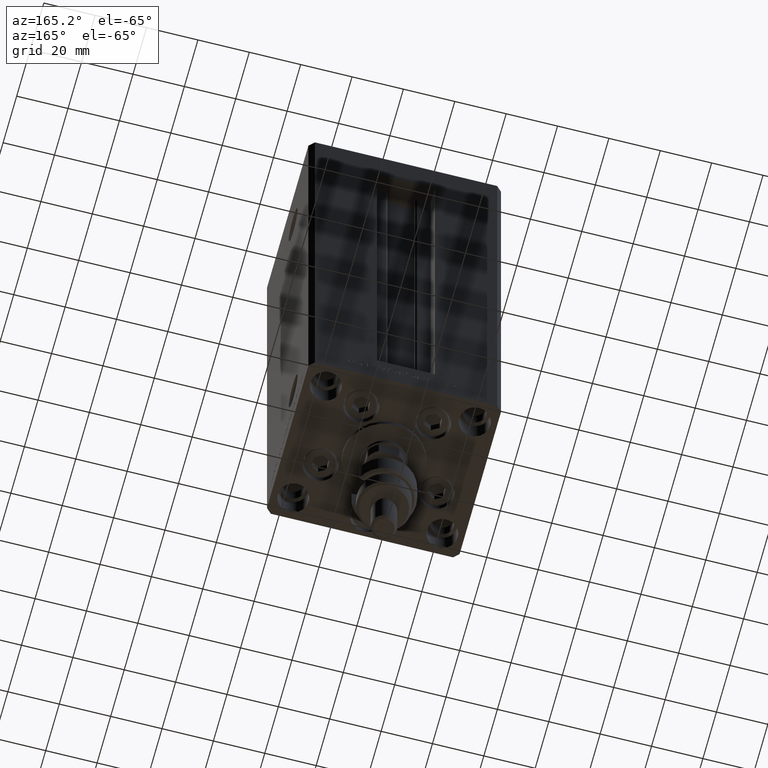
[diagram: clean part render]
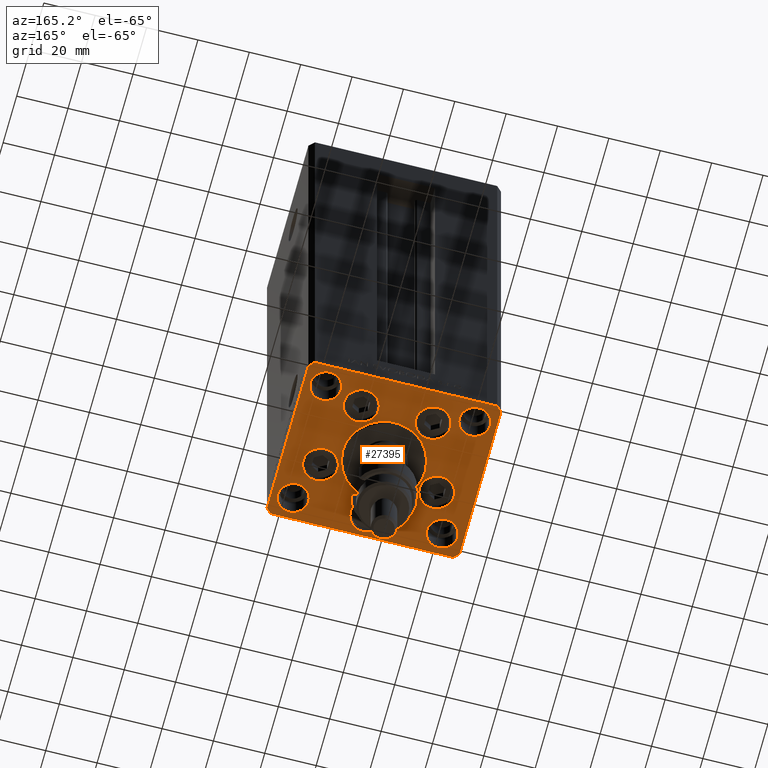
[diagram: same view with one face highlighted and labeled with its STEP entity id]
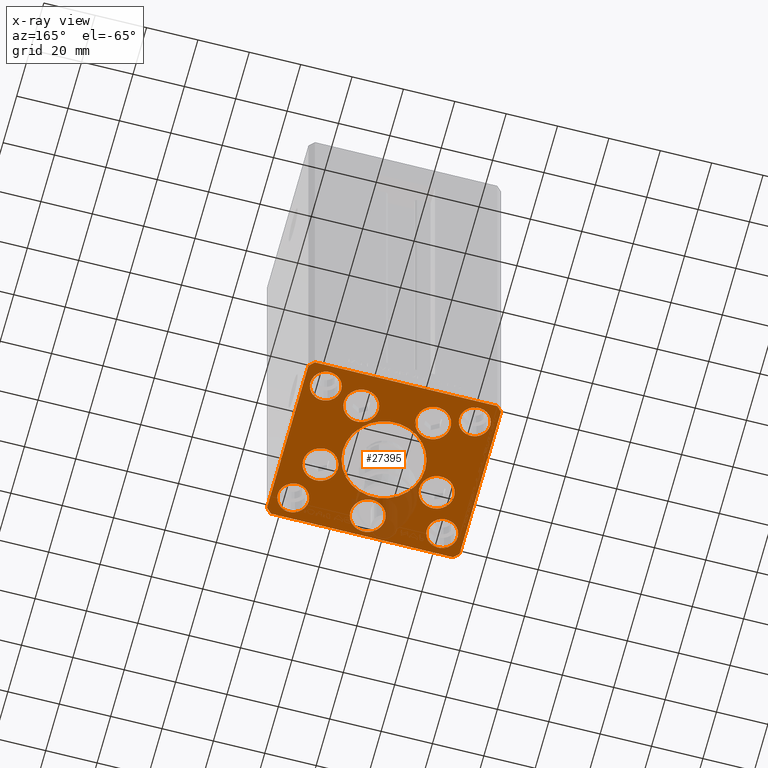
[diagram: x-ray of the same camera — body ghosted, the highlighted face saturated]
A machine part, auxiliary view. The second image highlights one B-rep face of the part: STEP entity #27395.
The next image is the same camera in x-ray: the body ghosted, the highlighted face saturated — about 7% of this face is hidden behind the body in this view.
In plain terms, the highlighted planar face has unit normal (0, 0, -1).
Its self-contained STEP definition (entity closure, byte-faithful):
#319 = FACE_BOUND ( 'NONE', #27380, .T. ) ;
#322 = DIRECTION ( 'NONE',  ( 0.000000000000000000, 1.000000000000000000, 0.000000000000000000 ) ) ;
#432 = AXIS2_PLACEMENT_3D ( 'NONE', #17526, #21367, #40750 ) ;
#747 = CARTESIAN_POINT ( 'NONE',  ( 13.99106857963324124, 19.50000000000000000, 0.000000000000000000 ) ) ;
#840 = CARTESIAN_POINT ( 'NONE',  ( -20.74106857963324302, 19.50000000000000000, 0.000000000000000000 ) ) ;
#1094 = DIRECTION ( 'NONE',  ( 0.000000000000000000, 0.000000000000000000, 1.000000000000000000 ) ) ;
#1634 = VERTEX_POINT ( 'NONE', #45539 ) ;
#2009 = DIRECTION ( 'NONE',  ( 0.000000000000000000, 0.000000000000000000, 1.000000000000000000 ) ) ;
#2075 = VERTEX_POINT ( 'NONE', #42653 ) ;
#2346 = ORIENTED_EDGE ( 'NONE', *, *, #33706, .T. ) ;
#2354 = DIRECTION ( 'NONE',  ( 1.000000000000000000, 0.000000000000000000, 0.000000000000000000 ) ) ;
#2499 = CIRCLE ( 'NONE', #30240, 6.000000000000001776 ) ;
#2607 = DIRECTION ( 'NONE',  ( 2.275047181608926165E-16, -1.000000000000000000, 0.000000000000000000 ) ) ;
#2815 = DIRECTION ( 'NONE',  ( -0.7071067811865524577, -0.7071067811865426878, 0.000000000000000000 ) ) ;
#3482 = CARTESIAN_POINT ( 'NONE',  ( -29.37741699796953654, -8.000000000000000000, 0.000000000000000000 ) ) ;
#4156 = LINE ( 'NONE', #35289, #38478 ) ;
#4389 = EDGE_CURVE ( 'NONE', #29382, #18525, #40756, .T. ) ;
#4407 = FACE_BOUND ( 'NONE', #25625, .T. ) ;
#5706 = DIRECTION ( 'NONE',  ( 0.000000000000000000, 0.000000000000000000, 1.000000000000000000 ) ) ;
#6003 = AXIS2_PLACEMENT_3D ( 'NONE', #7097, #38248, #48723 ) ;
#6051 = AXIS2_PLACEMENT_3D ( 'NONE', #31749, #42718, #20260 ) ;
#6179 = CARTESIAN_POINT ( 'NONE',  ( -13.99106857963324124, 19.50000000000000000, 0.000000000000000000 ) ) ;
#6196 = LINE ( 'NONE', #21772, #34078 ) ;
#6325 = EDGE_CURVE ( 'NONE', #23954, #28646, #2499, .T. ) ;
#6653 = AXIS2_PLACEMENT_3D ( 'NONE', #9346, #14883, #18452 ) ;
#7024 = CARTESIAN_POINT ( 'NONE',  ( 0.000000000000000000, 0.000000000000000000, 0.000000000000000000 ) ) ;
#7030 = VECTOR ( 'NONE', #12043, 1000.000000000000000 ) ;
#7097 = CARTESIAN_POINT ( 'NONE',  ( 29.00000000000000355, -23.99999999999999645, 0.000000000000000000 ) ) ;
#7099 = CARTESIAN_POINT ( 'NONE',  ( 7.241068579633242130, 19.50000000000000000, 0.000000000000000000 ) ) ;
#7168 = VERTEX_POINT ( 'NONE', #7099 ) ;
#7319 = DIRECTION ( 'NONE',  ( 0.000000000000000000, 0.000000000000000000, 1.000000000000000000 ) ) ;
#7394 = ORIENTED_EDGE ( 'NONE', *, *, #32963, .F. ) ;
#7513 = DIRECTION ( 'NONE',  ( 0.000000000000000000, 0.000000000000000000, 1.000000000000000000 ) ) ;
#7701 = AXIS2_PLACEMENT_3D ( 'NONE', #13506, #2009, #45127 ) ;
#7783 = CARTESIAN_POINT ( 'NONE',  ( -35.50000000000000711, 32.49999999999997868, 0.000000000000000000 ) ) ;
#7959 = ORIENTED_EDGE ( 'NONE', *, *, #45620, .F. ) ;
#8325 = VECTOR ( 'NONE', #31111, 1000.000000000000000 ) ;
#8426 = VERTEX_POINT ( 'NONE', #7783 ) ;
#8469 = DIRECTION ( 'NONE',  ( -0.000000000000000000, 0.000000000000000000, 1.000000000000000000 ) ) ;
#8533 = ORIENTED_EDGE ( 'NONE', *, *, #20766, .F. ) ;
#8701 = DIRECTION ( 'NONE',  ( 0.000000000000000000, 0.000000000000000000, 1.000000000000000000 ) ) ;
#8733 = ORIENTED_EDGE ( 'NONE', *, *, #20918, .T. ) ;
#8927 = ORIENTED_EDGE ( 'NONE', *, *, #18617, .F. ) ;
#9290 = CIRCLE ( 'NONE', #6051, 6.000000000000001776 ) ;
#9346 = CARTESIAN_POINT ( 'NONE',  ( 13.99106857963324124, 19.50000000000000000, 0.000000000000000000 ) ) ;
#9428 = CIRCLE ( 'NONE', #19209, 6.750000000000009770 ) ;
#9737 = ORIENTED_EDGE ( 'NONE', *, *, #48559, .F. ) ;
#9741 = EDGE_CURVE ( 'NONE', #2075, #37501, #26149, .T. ) ;
#9926 = EDGE_LOOP ( 'NONE', ( #7959, #8533 ) ) ;
#10194 = ORIENTED_EDGE ( 'NONE', *, *, #18890, .F. ) ;
#10372 = VERTEX_POINT ( 'NONE', #11335 ) ;
#10645 = CARTESIAN_POINT ( 'NONE',  ( -22.62741699796953299, -8.000000000000000000, 0.000000000000000000 ) ) ;
#10714 = CARTESIAN_POINT ( 'NONE',  ( -6.750000000001552536, -24.00000000000001066, 0.000000000000000000 ) ) ;
#10872 = VERTEX_POINT ( 'NONE', #43595 ) ;
#11017 = CARTESIAN_POINT ( 'NONE',  ( -37.50000000000001421, 30.50000000000000000, 0.000000000000000000 ) ) ;
#11073 = EDGE_CURVE ( 'NONE', #22239, #16696, #36788, .T. ) ;
#11115 = CIRCLE ( 'NONE', #33123, 16.00000000000000355 ) ;
#11335 = CARTESIAN_POINT ( 'NONE',  ( -15.87741699796953476, -8.000000000000000000, 0.000000000000000000 ) ) ;
#11448 = DIRECTION ( 'NONE',  ( -0.7071067811865524577, 0.7071067811865426878, 0.000000000000000000 ) ) ;
#11917 = AXIS2_PLACEMENT_3D ( 'NONE', #44739, #5706, #28697 ) ;
#12043 = DIRECTION ( 'NONE',  ( 1.000000000000000000, 1.172770800660376149E-15, 0.000000000000000000 ) ) ;
#12087 = ORIENTED_EDGE ( 'NONE', *, *, #9741, .F. ) ;
#12309 = FACE_OUTER_BOUND ( 'NONE', #24247, .T. ) ;
#12482 = CARTESIAN_POINT ( 'NONE',  ( 29.00000000000000000, 24.00000000000000355, 0.000000000000000000 ) ) ;
#12649 = CARTESIAN_POINT ( 'NONE',  ( 6.750000000001552536, -24.00000000000001066, 0.000000000000000000 ) ) ;
#12866 = EDGE_CURVE ( 'NONE', #13572, #8426, #27283, .T. ) ;
#13194 = ORIENTED_EDGE ( 'NONE', *, *, #48880, .F. ) ;
#13206 = EDGE_LOOP ( 'NONE', ( #10194, #22222 ) ) ;
#13506 = CARTESIAN_POINT ( 'NONE',  ( -13.99106857963324124, 19.50000000000000000, 0.000000000000000000 ) ) ;
#13572 = VERTEX_POINT ( 'NONE', #29367 ) ;
#13804 = CARTESIAN_POINT ( 'NONE',  ( -29.00000000000000000, 24.00000000000000711, 0.000000000000000000 ) ) ;
#14061 = ORIENTED_EDGE ( 'NONE', *, *, #48281, .T. ) ;
#14280 = ORIENTED_EDGE ( 'NONE', *, *, #29124, .F. ) ;
#14435 = ORIENTED_EDGE ( 'NONE', *, *, #26167, .T. ) ;
#14702 = DIRECTION ( 'NONE',  ( 1.000000000000000000, 0.000000000000000000, 0.000000000000000000 ) ) ;
#14849 = LINE ( 'NONE', #11017, #18164 ) ;
#14883 = DIRECTION ( 'NONE',  ( 0.000000000000000000, 0.000000000000000000, 1.000000000000000000 ) ) ;
#14965 = CIRCLE ( 'NONE', #6003, 5.999999999999998224 ) ;
#15167 = CIRCLE ( 'NONE', #43685, 16.00000000000000355 ) ;
#15390 = CIRCLE ( 'NONE', #22756, 6.750000000001552536 ) ;
#15820 = CARTESIAN_POINT ( 'NONE',  ( 20.74106857963323947, 19.50000000000000000, 0.000000000000000000 ) ) ;
#15879 = FACE_BOUND ( 'NONE', #9926, .T. ) ;
#16003 = CIRCLE ( 'NONE', #11917, 6.749999999999999112 ) ;
#16139 = FACE_BOUND ( 'NONE', #13206, .T. ) ;
#16154 = CARTESIAN_POINT ( 'NONE',  ( -23.00000000000000000, 24.00000000000000711, 0.000000000000000000 ) ) ;
#16273 = EDGE_LOOP ( 'NONE', ( #24121, #48031 ) ) ;
#16322 = VERTEX_POINT ( 'NONE', #24980 ) ;
#16456 = EDGE_LOOP ( 'NONE', ( #14280, #36367 ) ) ;
#16696 = VERTEX_POINT ( 'NONE', #19611 ) ;
#17526 = CARTESIAN_POINT ( 'NONE',  ( 29.00000000000000000, 24.00000000000000355, 0.000000000000000000 ) ) ;
#17543 = CIRCLE ( 'NONE', #432, 6.000000000000001776 ) ;
#17652 = VERTEX_POINT ( 'NONE', #23261 ) ;
#17779 = CARTESIAN_POINT ( 'NONE',  ( -37.50000000000001421, 30.50000000000000000, 0.000000000000000000 ) ) ;
#17818 = DIRECTION ( 'NONE',  ( 1.000000000000000000, 0.000000000000000000, 0.000000000000000000 ) ) ;
#17885 = CARTESIAN_POINT ( 'NONE',  ( -35.50000000000000711, 32.49999999999997868, 0.000000000000000000 ) ) ;
#18125 = DIRECTION ( 'NONE',  ( 0.000000000000000000, 0.000000000000000000, 1.000000000000000000 ) ) ;
#18164 = VECTOR ( 'NONE', #2607, 1000.000000000000000 ) ;
#18168 = DIRECTION ( 'NONE',  ( 0.7071067811865463515, 0.7071067811865487940, 0.000000000000000000 ) ) ;
#18452 = DIRECTION ( 'NONE',  ( 1.000000000000000000, 0.000000000000000000, 0.000000000000000000 ) ) ;
#18514 = FACE_BOUND ( 'NONE', #22981, .T. ) ;
#18525 = VERTEX_POINT ( 'NONE', #10714 ) ;
#18617 = EDGE_CURVE ( 'NONE', #16322, #10872, #18944, .T. ) ;
#18879 = DIRECTION ( 'NONE',  ( 1.000000000000000000, 0.000000000000000000, 0.000000000000000000 ) ) ;
#18890 = EDGE_CURVE ( 'NONE', #10372, #29210, #27927, .T. ) ;
#18944 = CIRCLE ( 'NONE', #20591, 6.750000000000009770 ) ;
#18977 = ORIENTED_EDGE ( 'NONE', *, *, #4389, .F. ) ;
#19209 = AXIS2_PLACEMENT_3D ( 'NONE', #27874, #8701, #48945 ) ;
#19314 = ORIENTED_EDGE ( 'NONE', *, *, #47482, .F. ) ;
#19458 = ORIENTED_EDGE ( 'NONE', *, *, #23281, .T. ) ;
#19611 = CARTESIAN_POINT ( 'NONE',  ( -23.00000000000000000, -23.99999999999999645, 0.000000000000000000 ) ) ;
#19614 = VERTEX_POINT ( 'NONE', #39176 ) ;
#20127 = CARTESIAN_POINT ( 'NONE',  ( 35.50000000000000000, 32.49999999999999289, 0.000000000000000000 ) ) ;
#20260 = DIRECTION ( 'NONE',  ( 1.000000000000000000, 0.000000000000000000, 0.000000000000000000 ) ) ;
#20395 = DIRECTION ( 'NONE',  ( 1.000000000000000000, 0.000000000000000000, 0.000000000000000000 ) ) ;
#20548 = ORIENTED_EDGE ( 'NONE', *, *, #31180, .T. ) ;
#20591 = AXIS2_PLACEMENT_3D ( 'NONE', #29872, #34197, #18879 ) ;
#20598 = CARTESIAN_POINT ( 'NONE',  ( -37.50000000000000000, -30.50000000000004263, 0.000000000000000000 ) ) ;
#20766 = EDGE_CURVE ( 'NONE', #7168, #34777, #22179, .T. ) ;
#20918 = EDGE_CURVE ( 'NONE', #25243, #39107, #4156, .T. ) ;
#21367 = DIRECTION ( 'NONE',  ( 0.000000000000000000, 0.000000000000000000, 1.000000000000000000 ) ) ;
#21439 = ORIENTED_EDGE ( 'NONE', *, *, #12866, .T. ) ;
#21538 = CARTESIAN_POINT ( 'NONE',  ( -29.00000000000000000, 24.00000000000000711, 0.000000000000000000 ) ) ;
#21772 = CARTESIAN_POINT ( 'NONE',  ( -37.50000000000000000, -30.50000000000004263, 0.000000000000000000 ) ) ;
#22049 = VERTEX_POINT ( 'NONE', #17779 ) ;
#22139 = CARTESIAN_POINT ( 'NONE',  ( -35.00000000000000000, 24.00000000000000711, 0.000000000000000000 ) ) ;
#22179 = CIRCLE ( 'NONE', #6653, 6.749999999999997335 ) ;
#22222 = ORIENTED_EDGE ( 'NONE', *, *, #48112, .F. ) ;
#22239 = VERTEX_POINT ( 'NONE', #25635 ) ;
#22456 = CARTESIAN_POINT ( 'NONE',  ( 35.00000000000000000, -23.99999999999999645, 0.000000000000000000 ) ) ;
#22582 = CIRCLE ( 'NONE', #40496, 6.000000000000001776 ) ;
#22756 = AXIS2_PLACEMENT_3D ( 'NONE', #27548, #23716, #39286 ) ;
#22981 = EDGE_LOOP ( 'NONE', ( #32457, #42889 ) ) ;
#23033 = AXIS2_PLACEMENT_3D ( 'NONE', #10645, #7319, #26223 ) ;
#23261 = CARTESIAN_POINT ( 'NONE',  ( 16.00000000000000355, -4.979459025271462852E-15, 0.000000000000000000 ) ) ;
#23281 = EDGE_CURVE ( 'NONE', #22049, #34230, #14849, .T. ) ;
#23441 = CARTESIAN_POINT ( 'NONE',  ( 37.50000000000000711, 30.50000000000001421, 0.000000000000000000 ) ) ;
#23716 = DIRECTION ( 'NONE',  ( 0.000000000000000000, 0.000000000000000000, 1.000000000000000000 ) ) ;
#23954 = VERTEX_POINT ( 'NONE', #22139 ) ;
#24052 = DIRECTION ( 'NONE',  ( 1.000000000000000000, 0.000000000000000000, 0.000000000000000000 ) ) ;
#24121 = ORIENTED_EDGE ( 'NONE', *, *, #27852, .F. ) ;
#24247 = EDGE_LOOP ( 'NONE', ( #44997, #14061, #20548, #8733, #14435, #21439, #2346, #19458 ) ) ;
#24980 = CARTESIAN_POINT ( 'NONE',  ( 15.87741699796952410, -8.000000000000000000, 0.000000000000000000 ) ) ;
#25243 = VERTEX_POINT ( 'NONE', #49732 ) ;
#25263 = EDGE_CURVE ( 'NONE', #37501, #2075, #14965, .T. ) ;
#25625 = EDGE_LOOP ( 'NONE', ( #19314, #8927 ) ) ;
#25635 = CARTESIAN_POINT ( 'NONE',  ( -35.00000000000000000, -23.99999999999999645, 0.000000000000000000 ) ) ;
#25791 = DIRECTION ( 'NONE',  ( 0.000000000000000000, 0.000000000000000000, 1.000000000000000000 ) ) ;
#26149 = CIRCLE ( 'NONE', #44863, 5.999999999999998224 ) ;
#26167 = EDGE_CURVE ( 'NONE', #39107, #13572, #38757, .T. ) ;
#26223 = DIRECTION ( 'NONE',  ( 1.000000000000000000, 0.000000000000000000, 0.000000000000000000 ) ) ;
#27245 = VECTOR ( 'NONE', #11448, 1000.000000000000000 ) ;
#27283 = LINE ( 'NONE', #20127, #8325 ) ;
#27380 = EDGE_LOOP ( 'NONE', ( #9737, #13194 ) ) ;
#27395 = ADVANCED_FACE ( 'NONE', ( #319, #41740, #15879, #4407, #35536, #16139, #31715, #47268, #18514, #41988, #12309 ), #43438, .T. ) ;
#27548 = CARTESIAN_POINT ( 'NONE',  ( 0.000000000000000000, -24.00000000000001066, 0.000000000000000000 ) ) ;
#27852 = EDGE_CURVE ( 'NONE', #33516, #28584, #32162, .T. ) ;
#27874 = CARTESIAN_POINT ( 'NONE',  ( 22.62741699796953299, -8.000000000000000000, 0.000000000000000000 ) ) ;
#27927 = CIRCLE ( 'NONE', #23033, 6.749999999999999112 ) ;
#28584 = VERTEX_POINT ( 'NONE', #840 ) ;
#28646 = VERTEX_POINT ( 'NONE', #16154 ) ;
#28697 = DIRECTION ( 'NONE',  ( 1.000000000000000000, 0.000000000000000000, 0.000000000000000000 ) ) ;
#29124 = EDGE_CURVE ( 'NONE', #29534, #40567, #17543, .T. ) ;
#29146 = ORIENTED_EDGE ( 'NONE', *, *, #6325, .F. ) ;
#29210 = VERTEX_POINT ( 'NONE', #3482 ) ;
#29367 = CARTESIAN_POINT ( 'NONE',  ( 35.50000000000000000, 32.49999999999999289, 0.000000000000000000 ) ) ;
#29382 = VERTEX_POINT ( 'NONE', #12649 ) ;
#29534 = VERTEX_POINT ( 'NONE', #46532 ) ;
#29628 = CARTESIAN_POINT ( 'NONE',  ( 0.000000000000000000, -6.938893903907228378E-15, 0.000000000000000000 ) ) ;
#29666 = LINE ( 'NONE', #41640, #49391 ) ;
#29872 = CARTESIAN_POINT ( 'NONE',  ( 22.62741699796953299, -8.000000000000000000, 0.000000000000000000 ) ) ;
#29881 = DIRECTION ( 'NONE',  ( 1.000000000000000000, 0.000000000000000000, 0.000000000000000000 ) ) ;
#29884 = LINE ( 'NONE', #17885, #29905 ) ;
#29905 = VECTOR ( 'NONE', #2815, 1000.000000000000000 ) ;
#30240 = AXIS2_PLACEMENT_3D ( 'NONE', #21538, #48096, #44755 ) ;
#30753 = CARTESIAN_POINT ( 'NONE',  ( 0.000000000000000000, -24.00000000000001066, 0.000000000000000000 ) ) ;
#31020 = ORIENTED_EDGE ( 'NONE', *, *, #25263, .F. ) ;
#31111 = DIRECTION ( 'NONE',  ( -1.000000000000000000, -1.954618001100627573E-16, 0.000000000000000000 ) ) ;
#31125 = EDGE_CURVE ( 'NONE', #28584, #33516, #33891, .T. ) ;
#31180 = EDGE_CURVE ( 'NONE', #38940, #25243, #29666, .T. ) ;
#31416 = AXIS2_PLACEMENT_3D ( 'NONE', #747, #32132, #20395 ) ;
#31715 = FACE_BOUND ( 'NONE', #16456, .T. ) ;
#31749 = CARTESIAN_POINT ( 'NONE',  ( -29.00000000000000000, -23.99999999999999645, 0.000000000000000000 ) ) ;
#32132 = DIRECTION ( 'NONE',  ( 0.000000000000000000, 0.000000000000000000, 1.000000000000000000 ) ) ;
#32162 = CIRCLE ( 'NONE', #7701, 6.750000000000000000 ) ;
#32457 = ORIENTED_EDGE ( 'NONE', *, *, #43948, .F. ) ;
#32963 = EDGE_CURVE ( 'NONE', #28646, #23954, #22582, .T. ) ;
#33123 = AXIS2_PLACEMENT_3D ( 'NONE', #45364, #44868, #17818 ) ;
#33201 = AXIS2_PLACEMENT_3D ( 'NONE', #12482, #36703, #47439 ) ;
#33516 = VERTEX_POINT ( 'NONE', #41416 ) ;
#33706 = EDGE_CURVE ( 'NONE', #8426, #22049, #29884, .T. ) ;
#33891 = CIRCLE ( 'NONE', #45299, 6.750000000000000000 ) ;
#34078 = VECTOR ( 'NONE', #37341, 1000.000000000000000 ) ;
#34197 = DIRECTION ( 'NONE',  ( 0.000000000000000000, 0.000000000000000000, 1.000000000000000000 ) ) ;
#34230 = VERTEX_POINT ( 'NONE', #20598 ) ;
#34777 = VERTEX_POINT ( 'NONE', #15820 ) ;
#35289 = CARTESIAN_POINT ( 'NONE',  ( 37.50000000000000711, -30.49999999999992895, 0.000000000000000000 ) ) ;
#35536 = FACE_BOUND ( 'NONE', #48460, .T. ) ;
#36289 = ORIENTED_EDGE ( 'NONE', *, *, #42069, .F. ) ;
#36336 = CARTESIAN_POINT ( 'NONE',  ( 35.50000000000001421, -32.49999999999992184, 0.000000000000000000 ) ) ;
#36367 = ORIENTED_EDGE ( 'NONE', *, *, #38386, .F. ) ;
#36703 = DIRECTION ( 'NONE',  ( 0.000000000000000000, 0.000000000000000000, 1.000000000000000000 ) ) ;
#36788 = CIRCLE ( 'NONE', #43304, 6.000000000000001776 ) ;
#37322 = DIRECTION ( 'NONE',  ( 0.000000000000000000, 0.000000000000000000, 1.000000000000000000 ) ) ;
#37341 = DIRECTION ( 'NONE',  ( 0.7071067811865512365, -0.7071067811865439090, 0.000000000000000000 ) ) ;
#37501 = VERTEX_POINT ( 'NONE', #22456 ) ;
#37718 = EDGE_LOOP ( 'NONE', ( #7394, #29146 ) ) ;
#38248 = DIRECTION ( 'NONE',  ( 0.000000000000000000, 0.000000000000000000, 1.000000000000000000 ) ) ;
#38356 = LINE ( 'NONE', #45997, #7030 ) ;
#38386 = EDGE_CURVE ( 'NONE', #40567, #29534, #42160, .T. ) ;
#38478 = VECTOR ( 'NONE', #322, 1000.000000000000000 ) ;
#38757 = LINE ( 'NONE', #23441, #27245 ) ;
#38940 = VERTEX_POINT ( 'NONE', #36336 ) ;
#39107 = VERTEX_POINT ( 'NONE', #46488 ) ;
#39167 = DIRECTION ( 'NONE',  ( 1.000000000000000000, 0.000000000000000000, 0.000000000000000000 ) ) ;
#39176 = CARTESIAN_POINT ( 'NONE',  ( -35.50000000000001421, -32.50000000000000711, 0.000000000000000000 ) ) ;
#39286 = DIRECTION ( 'NONE',  ( 1.000000000000000000, 0.000000000000000000, 0.000000000000000000 ) ) ;
#39647 = DIRECTION ( 'NONE',  ( 1.000000000000000000, 0.000000000000000000, 0.000000000000000000 ) ) ;
#39803 = EDGE_CURVE ( 'NONE', #34230, #19614, #6196, .T. ) ;
#39935 = AXIS2_PLACEMENT_3D ( 'NONE', #30753, #7513, #39167 ) ;
#40294 = EDGE_LOOP ( 'NONE', ( #31020, #12087 ) ) ;
#40496 = AXIS2_PLACEMENT_3D ( 'NONE', #13804, #25791, #41348 ) ;
#40567 = VERTEX_POINT ( 'NONE', #44966 ) ;
#40750 = DIRECTION ( 'NONE',  ( 1.000000000000000000, 0.000000000000000000, 0.000000000000000000 ) ) ;
#40756 = CIRCLE ( 'NONE', #39935, 6.750000000001552536 ) ;
#41348 = DIRECTION ( 'NONE',  ( 1.000000000000000000, 0.000000000000000000, 0.000000000000000000 ) ) ;
#41416 = CARTESIAN_POINT ( 'NONE',  ( -7.241068579633241242, 19.50000000000000000, 0.000000000000000000 ) ) ;
#41496 = DIRECTION ( 'NONE',  ( 0.000000000000000000, 0.000000000000000000, 1.000000000000000000 ) ) ;
#41640 = CARTESIAN_POINT ( 'NONE',  ( 35.50000000000001421, -32.49999999999992184, 0.000000000000000000 ) ) ;
#41740 = FACE_BOUND ( 'NONE', #16273, .T. ) ;
#41988 = FACE_BOUND ( 'NONE', #40294, .T. ) ;
#42069 = EDGE_CURVE ( 'NONE', #18525, #29382, #15390, .T. ) ;
#42160 = CIRCLE ( 'NONE', #33201, 6.000000000000001776 ) ;
#42653 = CARTESIAN_POINT ( 'NONE',  ( 23.00000000000000711, -23.99999999999999645, 0.000000000000000000 ) ) ;
#42718 = DIRECTION ( 'NONE',  ( 0.000000000000000000, 0.000000000000000000, 1.000000000000000000 ) ) ;
#42889 = ORIENTED_EDGE ( 'NONE', *, *, #11073, .F. ) ;
#43304 = AXIS2_PLACEMENT_3D ( 'NONE', #45578, #41496, #14702 ) ;
#43438 = PLANE ( 'NONE',  #46033 ) ;
#43595 = CARTESIAN_POINT ( 'NONE',  ( 29.37741699796954364, -8.000000000000000000, 0.000000000000000000 ) ) ;
#43685 = AXIS2_PLACEMENT_3D ( 'NONE', #29628, #18125, #29881 ) ;
#43948 = EDGE_CURVE ( 'NONE', #16696, #22239, #9290, .T. ) ;
#43959 = CARTESIAN_POINT ( 'NONE',  ( 29.00000000000000355, -23.99999999999999645, 0.000000000000000000 ) ) ;
#44739 = CARTESIAN_POINT ( 'NONE',  ( -22.62741699796953299, -8.000000000000000000, 0.000000000000000000 ) ) ;
#44755 = DIRECTION ( 'NONE',  ( 1.000000000000000000, 0.000000000000000000, 0.000000000000000000 ) ) ;
#44863 = AXIS2_PLACEMENT_3D ( 'NONE', #43959, #1094, #39647 ) ;
#44868 = DIRECTION ( 'NONE',  ( 0.000000000000000000, 0.000000000000000000, 1.000000000000000000 ) ) ;
#44966 = CARTESIAN_POINT ( 'NONE',  ( 23.00000000000000000, 24.00000000000000355, 0.000000000000000000 ) ) ;
#44997 = ORIENTED_EDGE ( 'NONE', *, *, #39803, .T. ) ;
#45127 = DIRECTION ( 'NONE',  ( 1.000000000000000000, 0.000000000000000000, 0.000000000000000000 ) ) ;
#45299 = AXIS2_PLACEMENT_3D ( 'NONE', #6179, #37322, #2354 ) ;
#45364 = CARTESIAN_POINT ( 'NONE',  ( 0.000000000000000000, -6.938893903907228378E-15, 0.000000000000000000 ) ) ;
#45539 = CARTESIAN_POINT ( 'NONE',  ( -16.00000000000000355, -6.938893903907228378E-15, 0.000000000000000000 ) ) ;
#45578 = CARTESIAN_POINT ( 'NONE',  ( -29.00000000000000000, -23.99999999999999645, 0.000000000000000000 ) ) ;
#45620 = EDGE_CURVE ( 'NONE', #34777, #7168, #47668, .T. ) ;
#45997 = CARTESIAN_POINT ( 'NONE',  ( -35.50000000000001421, -32.50000000000000711, 0.000000000000000000 ) ) ;
#46033 = AXIS2_PLACEMENT_3D ( 'NONE', #7024, #8469, #24052 ) ;
#46488 = CARTESIAN_POINT ( 'NONE',  ( 37.50000000000000711, 30.50000000000001421, 0.000000000000000000 ) ) ;
#46532 = CARTESIAN_POINT ( 'NONE',  ( 35.00000000000000000, 24.00000000000000355, 0.000000000000000000 ) ) ;
#47268 = FACE_BOUND ( 'NONE', #37718, .T. ) ;
#47439 = DIRECTION ( 'NONE',  ( 1.000000000000000000, 0.000000000000000000, 0.000000000000000000 ) ) ;
#47482 = EDGE_CURVE ( 'NONE', #10872, #16322, #9428, .T. ) ;
#47668 = CIRCLE ( 'NONE', #31416, 6.749999999999997335 ) ;
#48031 = ORIENTED_EDGE ( 'NONE', *, *, #31125, .F. ) ;
#48096 = DIRECTION ( 'NONE',  ( 0.000000000000000000, 0.000000000000000000, 1.000000000000000000 ) ) ;
#48112 = EDGE_CURVE ( 'NONE', #29210, #10372, #16003, .T. ) ;
#48281 = EDGE_CURVE ( 'NONE', #19614, #38940, #38356, .T. ) ;
#48460 = EDGE_LOOP ( 'NONE', ( #18977, #36289 ) ) ;
#48559 = EDGE_CURVE ( 'NONE', #1634, #17652, #15167, .T. ) ;
#48723 = DIRECTION ( 'NONE',  ( 1.000000000000000000, 0.000000000000000000, 0.000000000000000000 ) ) ;
#48880 = EDGE_CURVE ( 'NONE', #17652, #1634, #11115, .T. ) ;
#48945 = DIRECTION ( 'NONE',  ( 1.000000000000000000, 0.000000000000000000, 0.000000000000000000 ) ) ;
#49391 = VECTOR ( 'NONE', #18168, 1000.000000000000000 ) ;
#49732 = CARTESIAN_POINT ( 'NONE',  ( 37.50000000000000711, -30.49999999999992895, 0.000000000000000000 ) ) ;